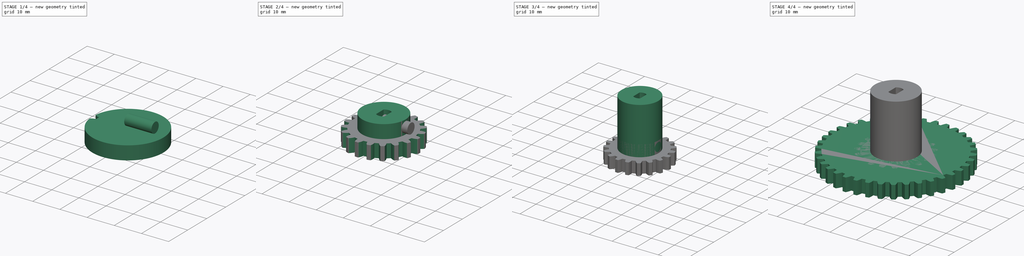
[diagram: build sequence overview — one tinted view per stage of 4, left to right]
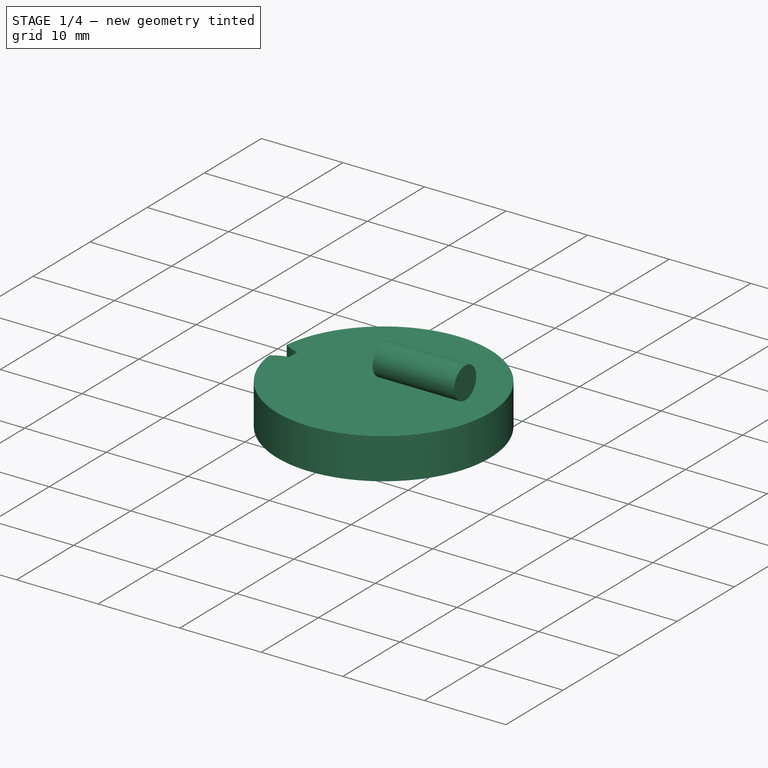
[diagram: stage 1 of 4 — iso view after this stage's code; geometry added in this stage tinted green]
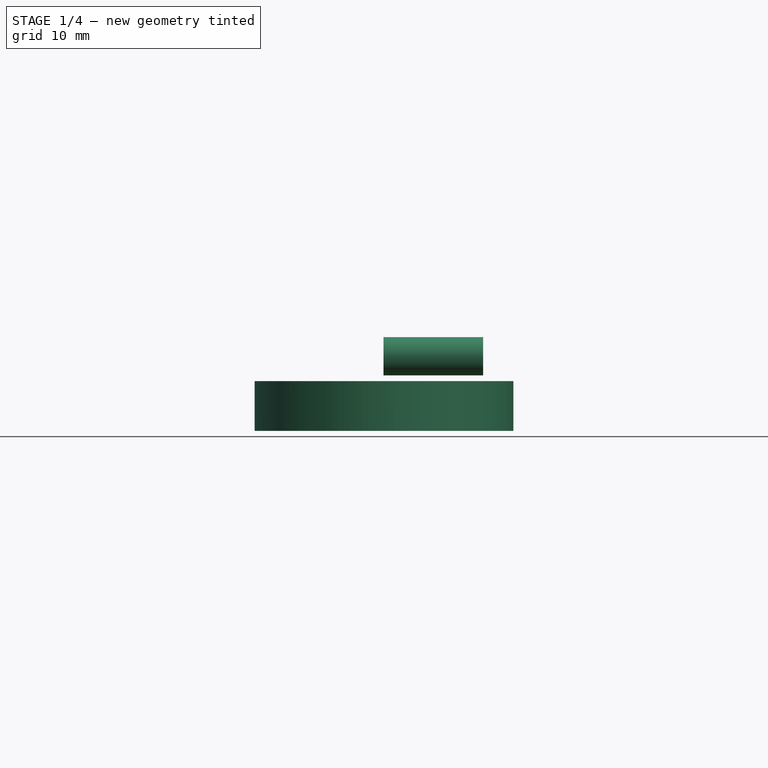
[diagram: stage 1 of 4 — front view after this stage's code; geometry added in this stage tinted green]
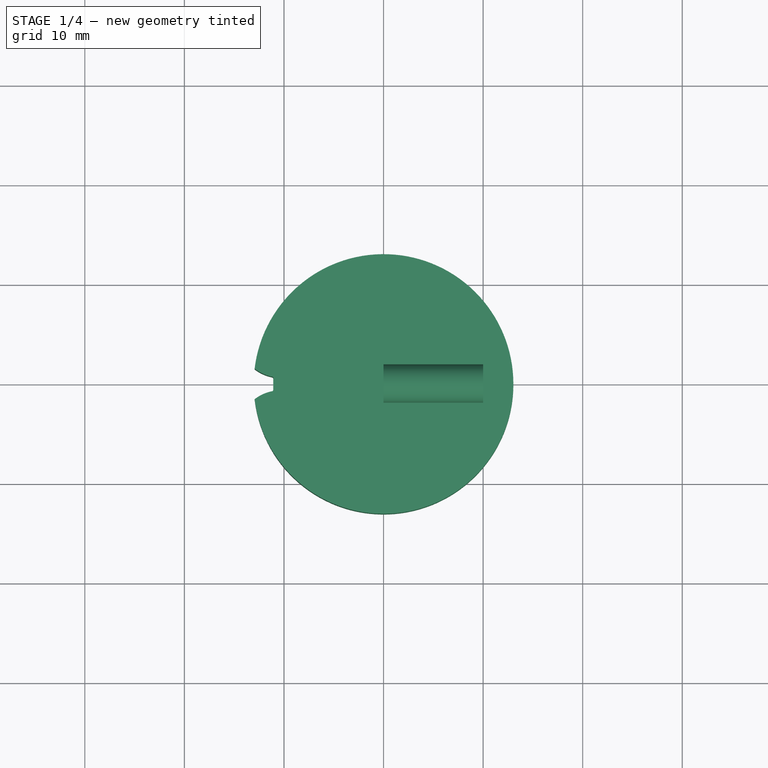
[diagram: stage 1 of 4 — top view after this stage's code; geometry added in this stage tinted green]
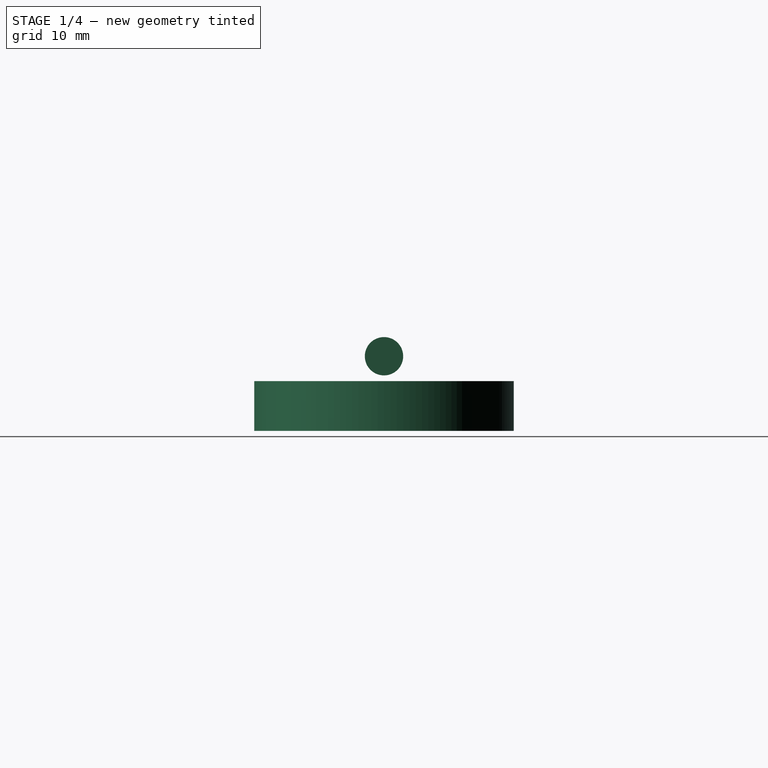
[diagram: stage 1 of 4 — right view after this stage's code; geometry added in this stage tinted green]
FCSTD DOCUMENT  (FreeCAD 0.15R4671 (Git))
Label: inner_gear19
License: All rights reserved
LicenseURL: http://en.wikipedia.org/wiki/All_rights_reserved
objects: Sketcher::SketchObject×9, PartDesign::Pad×5, PartDesign::Pocket×4, PartDesign::PolarPattern×2, Part::Cut×1
note: 30 computed .brp shape members not serialized (recipe doc carries the construction recipe); baked Part::Feature solids carry a one-line shape summary decoded from their .brp

FEATURE [Sketcher::SketchObject] Sketch005
  sketch-geometry (1):
    g0: Circle CenterX=0 CenterY=0 CenterZ=0 NormalX=0 NormalY=0 NormalZ=1 Radius=13.0379
  constraints (2):
    c: Coincident(g0,g-1)
    c: Radius(g0) = 13.0379
FEATURE [PartDesign::Pad] Pad002
  Length = 5
  Length2 = 100
  Sketch = -> Sketch005
  Type = 0
FEATURE [Sketcher::SketchObject] Sketch004
  Placement = pos=(0,0,5) rot=(0,0,1;0rad)
  Support = -> Pad002 [Face3]
  sketch-geometry (6):
    g0: LineSegment StartX=-11.08 StartY=0.600814 StartZ=0 EndX=-11.08 EndY=-0.600814 EndZ=0
    g1: ArcOfCircle CenterX=-10.3644 CenterY=-4.85409 CenterZ=0 NormalX=0 NormalY=0 NormalZ=1 Radius=4.20854 StartAngle=1.76734 EndAngle=2.23646
    g2: ArcOfCircle CenterX=-11.2076 CenterY=-0.600814 CenterZ=0 NormalX=0 NormalY=0 NormalZ=1 Radius=0.127562 StartAngle=4.88076 EndAngle=6.28319
    g3: ArcOfCircle CenterX=-11.2076 CenterY=0.600814 CenterZ=0 NormalX=0 NormalY=0 NormalZ=1 Radius=0.127562 StartAngle=6.28319 EndAngle=7.68561
    g4: ArcOfCircle CenterX=-10.3644 CenterY=4.85409 CenterZ=0 NormalX=0 NormalY=0 NormalZ=1 Radius=4.20854 StartAngle=4.04673 EndAngle=4.51585
    g5: ArcOfCircle CenterX=-14.1759 CenterY=0 CenterZ=0 NormalX=0 NormalY=0 NormalZ=1 Radius=1.96315 StartAngle=0.905139 EndAngle=5.37805
  constraints (20):
    c: Coincident(g3,g0)
    c: Coincident(g4,g3)
    c: Coincident(g0,g2)
    c: Coincident(g2,g1)
    c: Tangent(g2,g0)
    c: Symmetric(g0,g0,g-1)
    c: DistanceX(g0) = -11.08
    c: DistanceY(g0) = -0.600814
    c: DistanceX(g1) = -11.1862
    c: DistanceY(g1) = -0.726572
    c: DistanceX(g1) = -12.9635
    c: DistanceY(g1) = -1.54404
    c: Radius(g1) = 4.20854
    c: Equal(g1,g4)
    c: Symmetric(g4,g1,g-1)
    c: Symmetric(g3,g1,g-1)
    c: Tangent(g3,g0)
    c: Coincident(g5,g4)
    c: Coincident(g5,g1)
    c: Tangent(g5,g4)
FEATURE [PartDesign::Pocket] Pocket002
  Length = 5
  Sketch = -> Sketch004
  Type = 1
FEATURE [Sketcher::SketchObject] Sketch009
  Placement = pos=(0,0,0) rot=(0.57735,0.57735,0.57735;2.0944rad)
  sketch-geometry (1):
    g0: Circle CenterX=0 CenterY=7.5 CenterZ=0 NormalX=0 NormalY=0 NormalZ=1 Radius=1.925
  constraints (3):
    c: PointOnObject(g0,g-2)
    c: Radius(g0) = 1.925
    c: DistanceY(g0) = 7.5
FEATURE [PartDesign::Pad] Pad004
  Length = 10
  Length2 = 100
  Placement = pos=(0,0,0) rot=(0.57735,0.57735,0.57735;2.0944rad)
  Sketch = -> Sketch009
  Type = 0
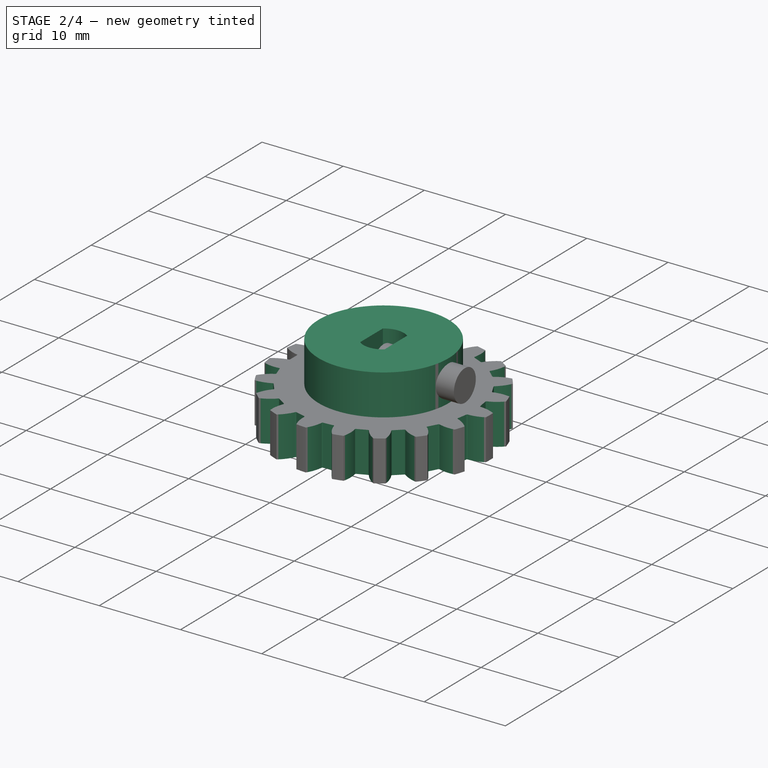
[diagram: stage 2 of 4 — iso view after this stage's code; geometry added in this stage tinted green]
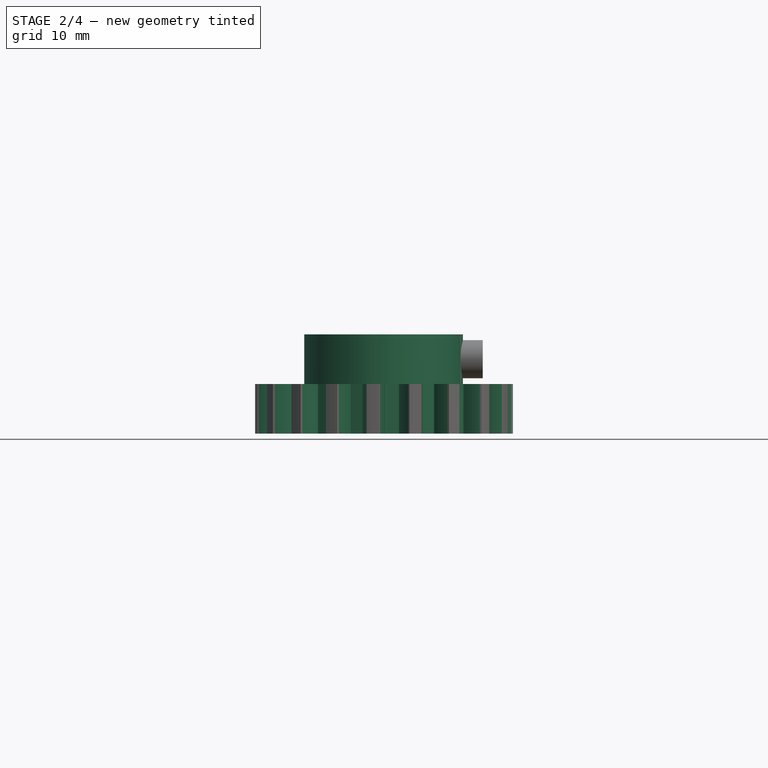
[diagram: stage 2 of 4 — front view after this stage's code; geometry added in this stage tinted green]
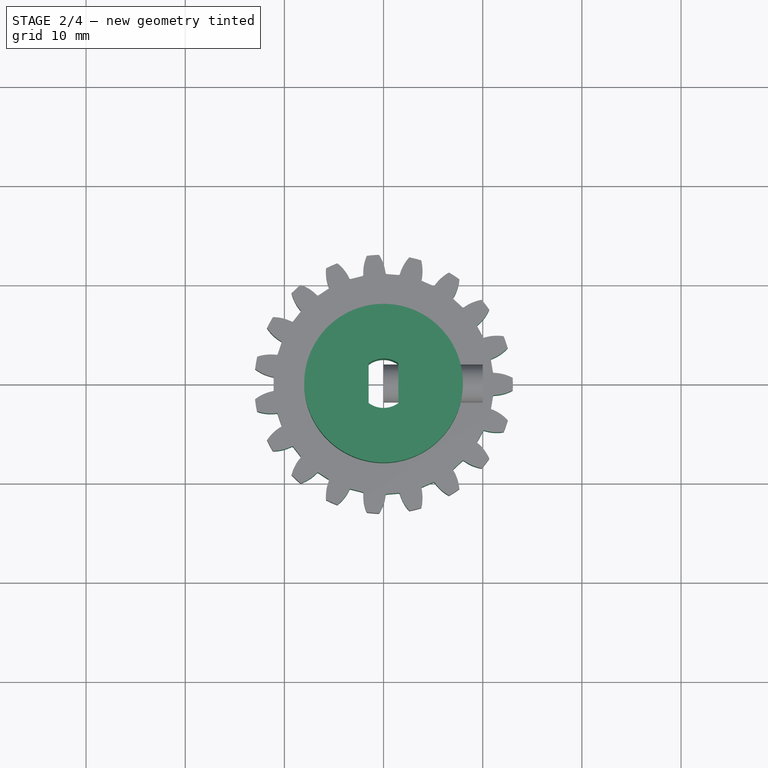
[diagram: stage 2 of 4 — top view after this stage's code; geometry added in this stage tinted green]
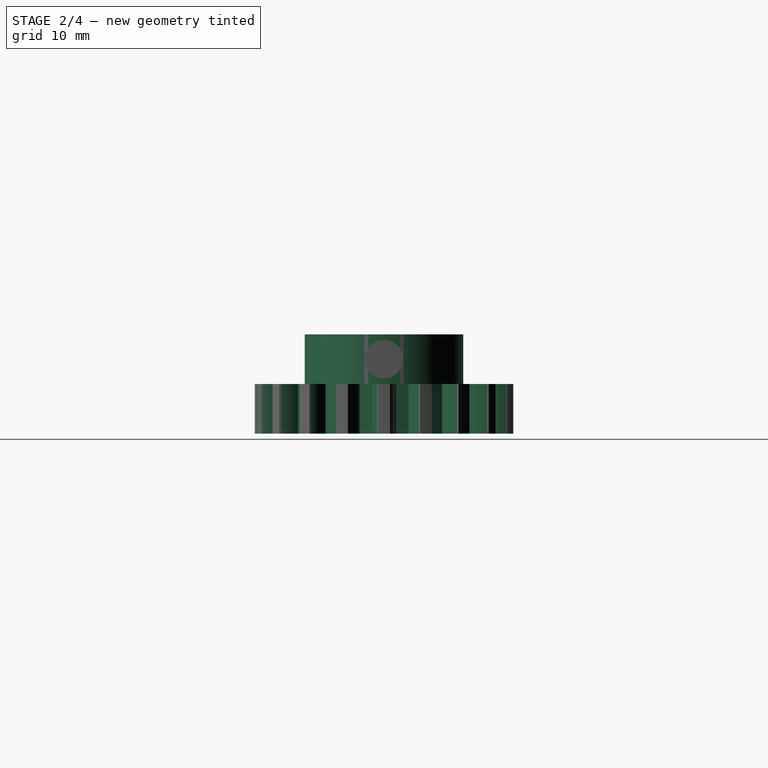
[diagram: stage 2 of 4 — right view after this stage's code; geometry added in this stage tinted green]
FEATURE [PartDesign::PolarPattern] PolarPattern001
  Angle = 360
  Axis = -> Sketch004 [N_Axis]
  Occurrences = 19
  Originals = -> [Pocket002]
FEATURE [Sketcher::SketchObject] Sketch006
  Placement = pos=(0,0,5) rot=(0,0,1;0rad)
  Support = -> PolarPattern001 [Face4]
  sketch-geometry (1):
    g0: Circle CenterX=0 CenterY=0 CenterZ=0 NormalX=0 NormalY=0 NormalZ=1 Radius=8
  constraints (2):
    c: Coincident(g0,g-1)
    c: Radius(g0) = 8
FEATURE [PartDesign::Pad] Pad003
  Length = 5
  Length2 = 100
  Sketch = -> Sketch006
  Type = 0
FEATURE [Sketcher::SketchObject] Sketch007
  Placement = pos=(0,0,10) rot=(0,0,1;0rad)
  Support = -> Pad003 [Face1]
  sketch-geometry (4):
    g0: LineSegment StartX=-1.5 StartY=2 StartZ=0 EndX=-1.5 EndY=-2 EndZ=0
    g1: LineSegment StartX=1.5 StartY=2 StartZ=0 EndX=1.5 EndY=-2 EndZ=0
    g2: ArcOfCircle CenterX=0 CenterY=0 CenterZ=0 NormalX=0 NormalY=0 NormalZ=1 Radius=2.5 StartAngle=0.927295 EndAngle=2.2143
    g3: ArcOfCircle CenterX=0 CenterY=0 CenterZ=0 NormalX=0 NormalY=0 NormalZ=1 Radius=2.5 StartAngle=4.06889 EndAngle=5.35589
  constraints (11):
    c: Symmetric(g0,g1,g-2)
    c: DistanceX(g0) = -1.5
    c: Symmetric(g0,g0,g-1)
    c: Symmetric(g0,g1,g-2)
    c: DistanceY(g0) = 2
    c: Coincident(g2,g0)
    c: Coincident(g2,g1)
    c: Coincident(g2,g-1)
    c: Coincident(g3,g0)
    c: Coincident(g3,g1)
    c: Coincident(g3,g-1)
FEATURE [PartDesign::Pocket] Pocket003
  Length = 5
  Sketch = -> Sketch007
  Type = 1
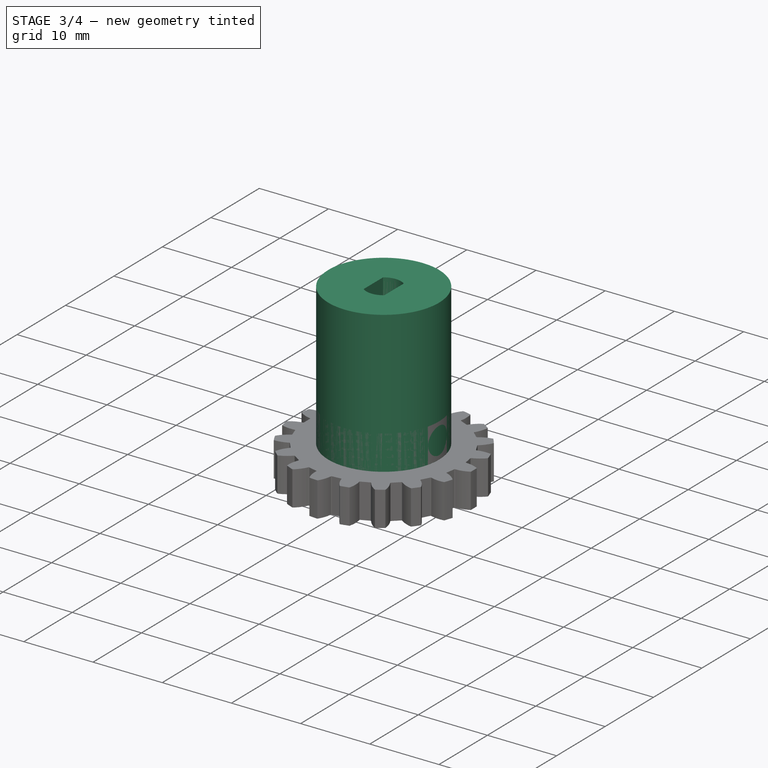
[diagram: stage 3 of 4 — iso view after this stage's code; geometry added in this stage tinted green]
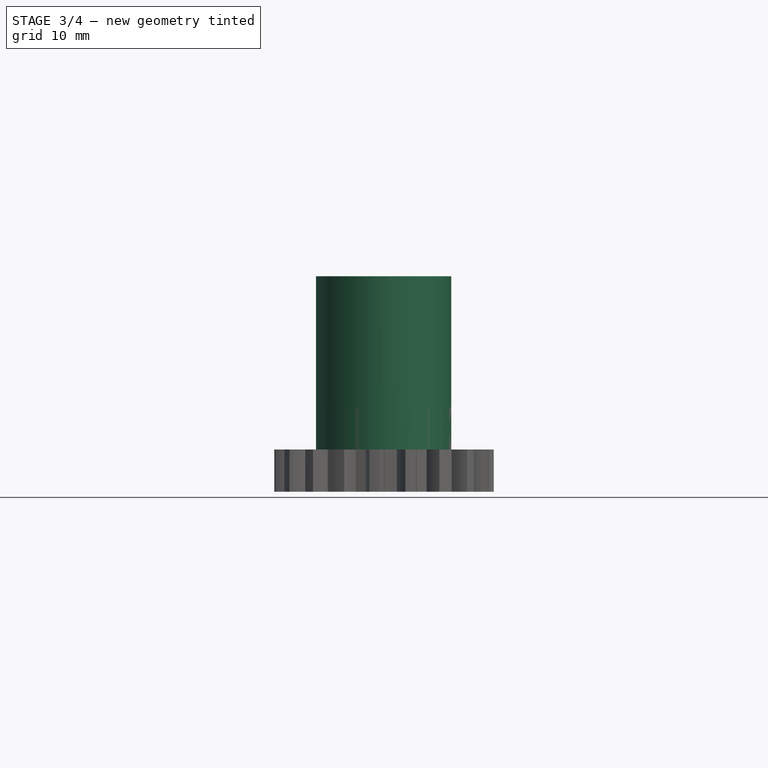
[diagram: stage 3 of 4 — front view after this stage's code; geometry added in this stage tinted green]
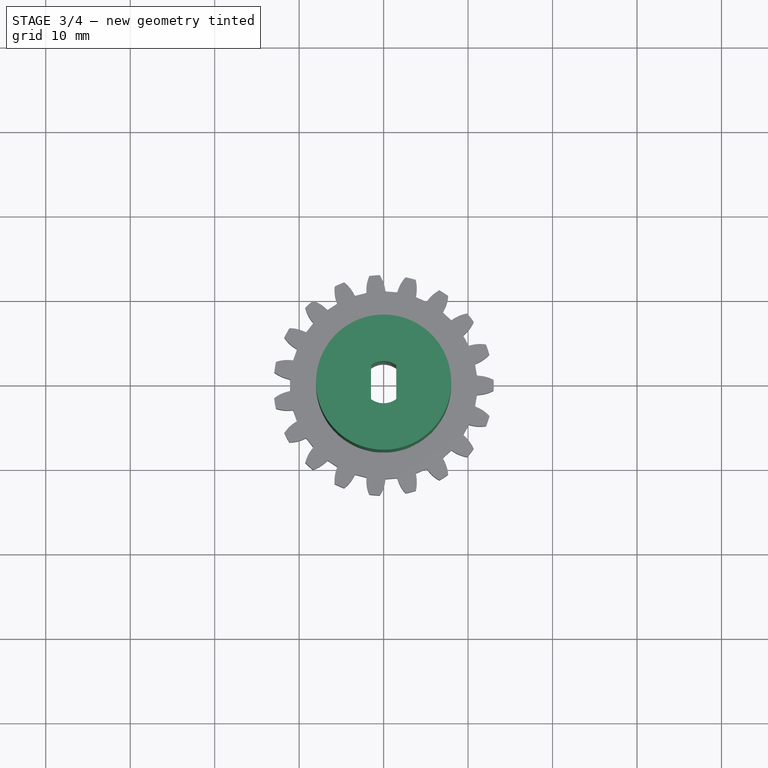
[diagram: stage 3 of 4 — top view after this stage's code; geometry added in this stage tinted green]
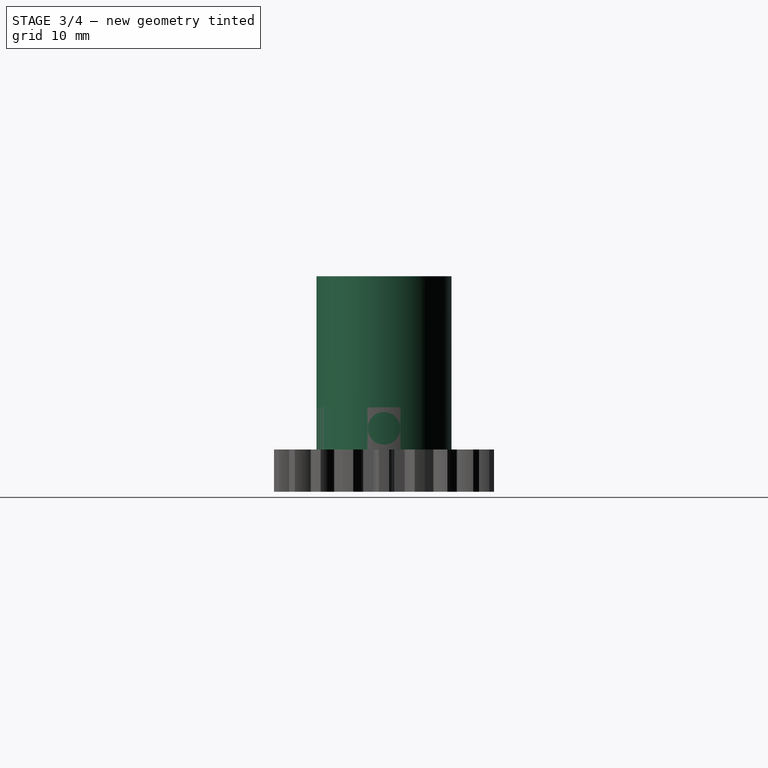
[diagram: stage 3 of 4 — right view after this stage's code; geometry added in this stage tinted green]
FEATURE [Sketcher::SketchObject] Sketch002
  Placement = pos=(0,0,5) rot=(0,0,1;0rad)
  Support = -> PolarPattern001 [Face4]
  sketch-geometry (1):
    g0: Circle CenterX=0 CenterY=0 CenterZ=0 NormalX=0 NormalY=0 NormalZ=1 Radius=8
  constraints (2):
    c: Coincident(g0,g-1)
    c: Radius(g0) = 8
FEATURE [PartDesign::Pad] Pad001
  Length = 20.5
  Length2 = 100
  Sketch = -> Sketch002
  Type = 0
FEATURE [Sketcher::SketchObject] Sketch003
  Placement = pos=(0,0,25.5) rot=(0,0,1;0rad)
  Support = -> Pad001 [Face1]
  sketch-geometry (4):
    g0: LineSegment StartX=-1.5 StartY=2 StartZ=0 EndX=-1.5 EndY=-2 EndZ=0
    g1: LineSegment StartX=1.5 StartY=2 StartZ=0 EndX=1.5 EndY=-2 EndZ=0
    g2: ArcOfCircle CenterX=0 CenterY=0 CenterZ=0 NormalX=0 NormalY=0 NormalZ=1 Radius=2.5 StartAngle=0.927295 EndAngle=2.2143
    g3: ArcOfCircle CenterX=0 CenterY=0 CenterZ=0 NormalX=0 NormalY=0 NormalZ=1 Radius=2.5 StartAngle=4.06889 EndAngle=5.35589
  constraints (11):
    c: Symmetric(g0,g1,g-2)
    c: DistanceX(g0) = -1.5
    c: Symmetric(g0,g0,g-1)
    c: Symmetric(g0,g1,g-2)
    c: DistanceY(g0) = 2
    c: Coincident(g2,g0)
    c: Coincident(g2,g1)
    c: Coincident(g2,g-1)
    c: Coincident(g3,g0)
    c: Coincident(g3,g1)
    c: Coincident(g3,g-1)
FEATURE [PartDesign::Pocket] Pocket001
  Length = 5
  Sketch = -> Sketch003
  Type = 1
FEATURE [Part::Cut] Cut
  Base = -> Pocket003
  Tool = -> Pad004
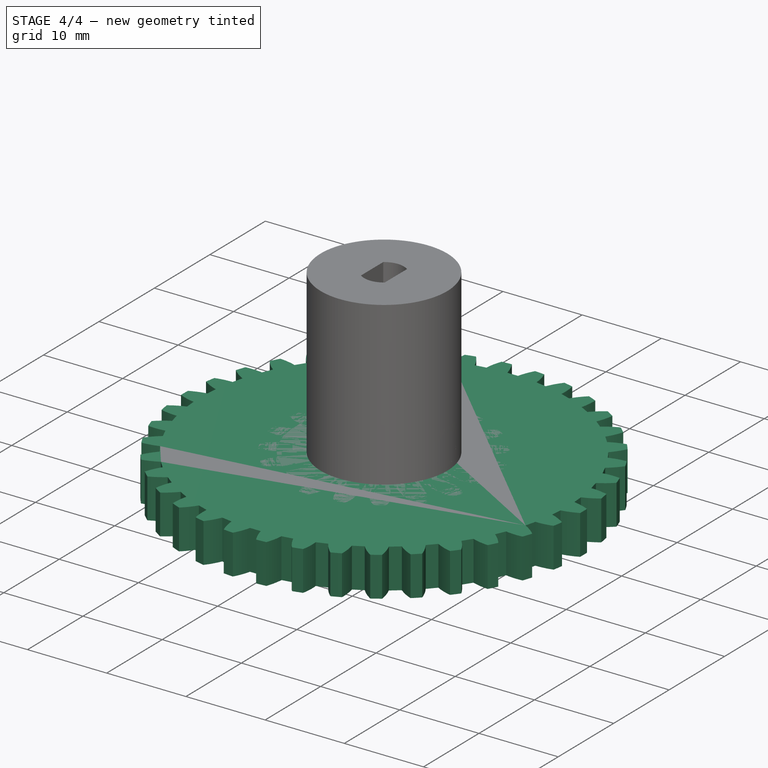
[diagram: stage 4 of 4 — iso view after this stage's code; geometry added in this stage tinted green]
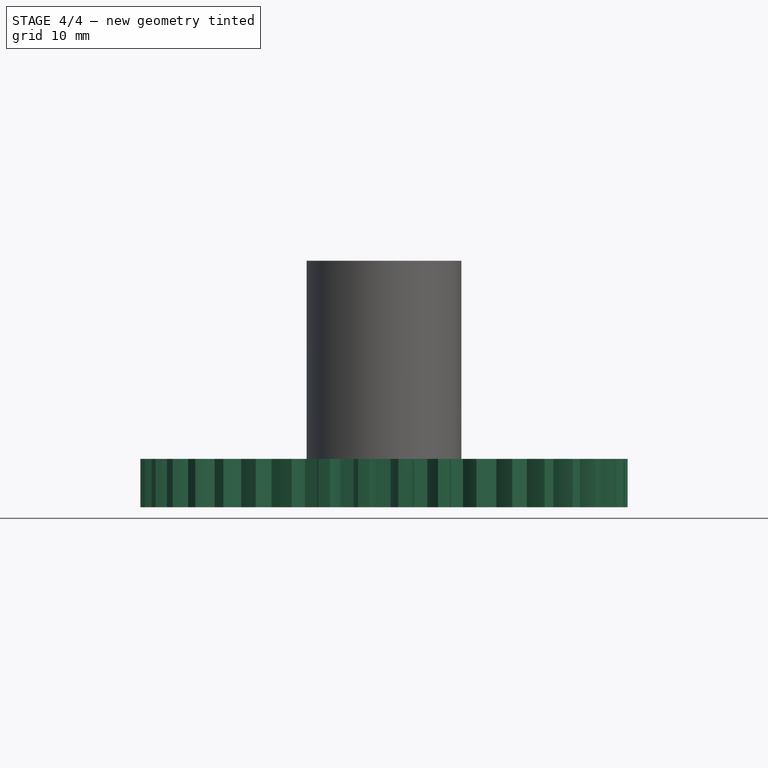
[diagram: stage 4 of 4 — front view after this stage's code; geometry added in this stage tinted green]
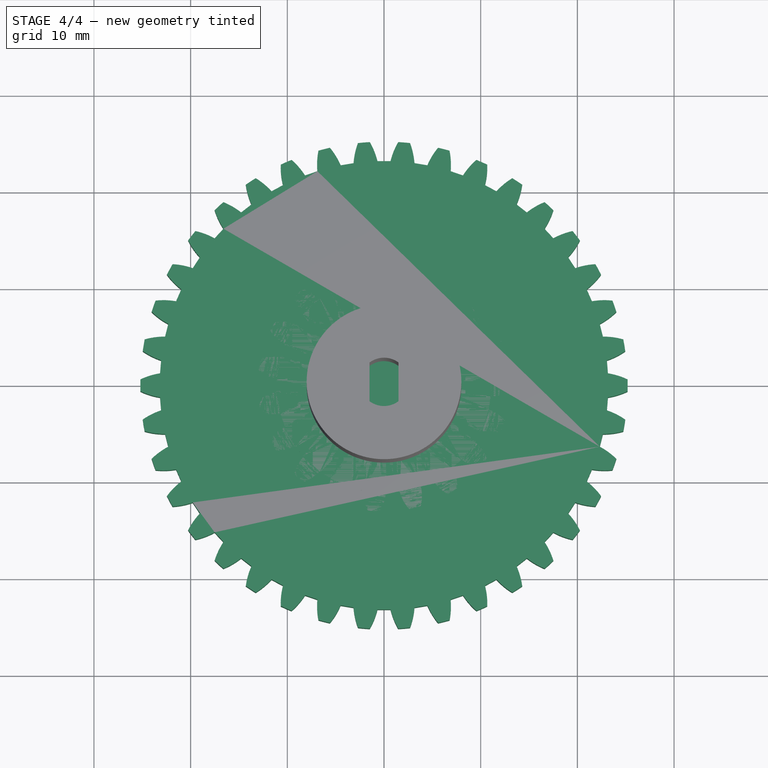
[diagram: stage 4 of 4 — top view after this stage's code; geometry added in this stage tinted green]
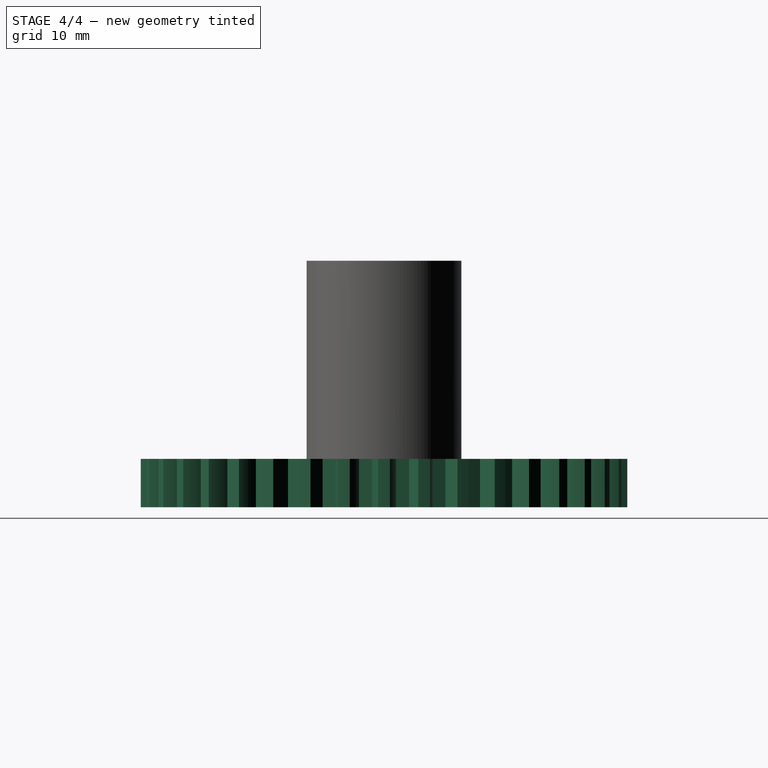
[diagram: stage 4 of 4 — right view after this stage's code; geometry added in this stage tinted green]
FEATURE [Sketcher::SketchObject] Sketch
  sketch-geometry (1):
    g0: Circle CenterX=0 CenterY=0 CenterZ=0 NormalX=0 NormalY=0 NormalZ=1 Radius=25.2012
  constraints (2):
    c: Radius(g0) = 25.2012
    c: Coincident(g0,g-1)
FEATURE [PartDesign::Pad] Pad
  Length = 5
  Length2 = 100
  Sketch = -> Sketch
  Type = 0
FEATURE [Sketcher::SketchObject] Sketch001
  Placement = pos=(0,0,5) rot=(0,0,1;0rad)
  Support = -> Pad [Face3]
  sketch-geometry (7):
    g0: LineSegment [constr] StartX=0 StartY=0 StartZ=0 EndX=0 EndY=23.186 EndZ=0
    g1: ArcOfCircle CenterX=-7.92249 CenterY=21.4089 CenterZ=0 NormalX=0 NormalY=0 NormalZ=1 Radius=7.46365 StartAngle=0.240414 EndAngle=0.527906
    g2: LineSegment StartX=-0.673495 StartY=23.186 StartZ=0 EndX=0.673495 EndY=23.186 EndZ=0
    g3: ArcOfCircle CenterX=7.92249 CenterY=21.4089 CenterZ=0 NormalX=0 NormalY=0 NormalZ=1 Radius=7.46365 StartAngle=2.61369 EndAngle=2.90118
    g4: ArcOfCircle CenterX=0 CenterY=25.2776 CenterZ=0 NormalX=0 NormalY=0 NormalZ=1 Radius=1.47894 StartAngle=6.20935 EndAngle=9.49862
    g5: LineSegment [constr] StartX=-1.47491 StartY=25.1685 StartZ=0 EndX=1.47491 EndY=25.1685 EndZ=0
    g6: LineSegment [constr] StartX=0 StartY=23.186 StartZ=0 EndX=0 EndY=25.1685 EndZ=0
  constraints (21):
    c: Coincident(g2,g1)
    c: Symmetric(g1,g2,g0)
    c: Coincident(g3,g2)
    c: Symmetric(g1,g3,g0)
    c: Symmetric(g1,g3,g0)
    c: Distance(g2) = 1.34699
    c: Coincident(g4,g1)
    c: Coincident(g4,g3)
    c: Radius(g4) = 1.47894
    c: Radius(g1) = 7.46365
    c: PointOnObject(g0,g2)
    c: Distance(g0) = 23.186
    c: Coincident(g5,g1)
    c: Coincident(g5,g3)
    c: Distance(g5) = 2.94982
    c: Coincident(g6,g0)
    c: PointOnObject(g6,g5)
    c: Perpendicular(g5,g6)
    c: Distance(g6) = 1.9825
    c: Vertical(g0)
    c: Coincident(g0,g-1)
FEATURE [PartDesign::Pocket] Pocket
  Length = 5
  Sketch = -> Sketch001
  Type = 1
FEATURE [PartDesign::PolarPattern] PolarPattern
  Angle = 360
  Axis = -> Sketch001 [N_Axis]
  Occurrences = 38
  Originals = -> [Pocket]
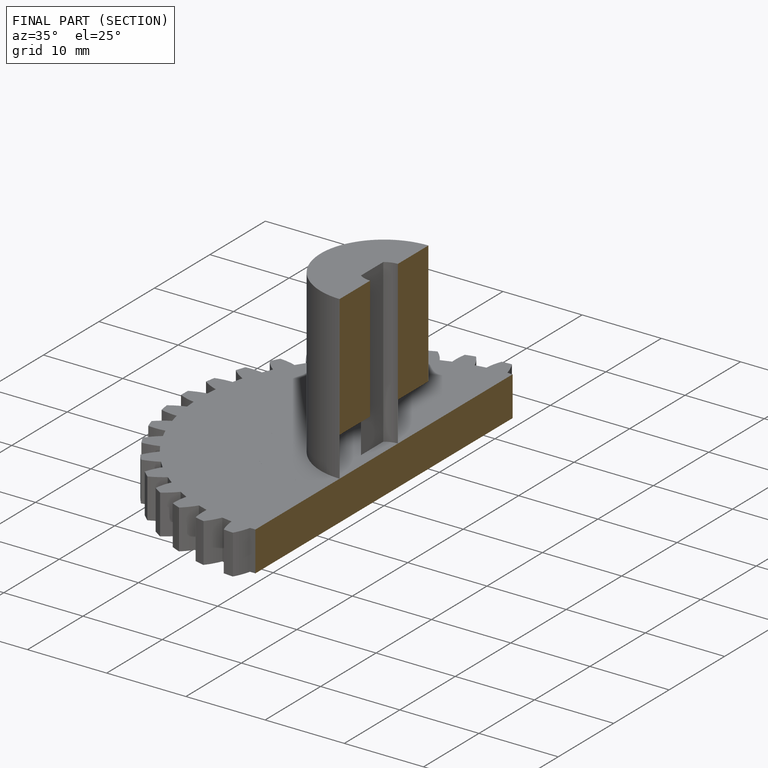
[diagram: finished part — half-section view (interior)]
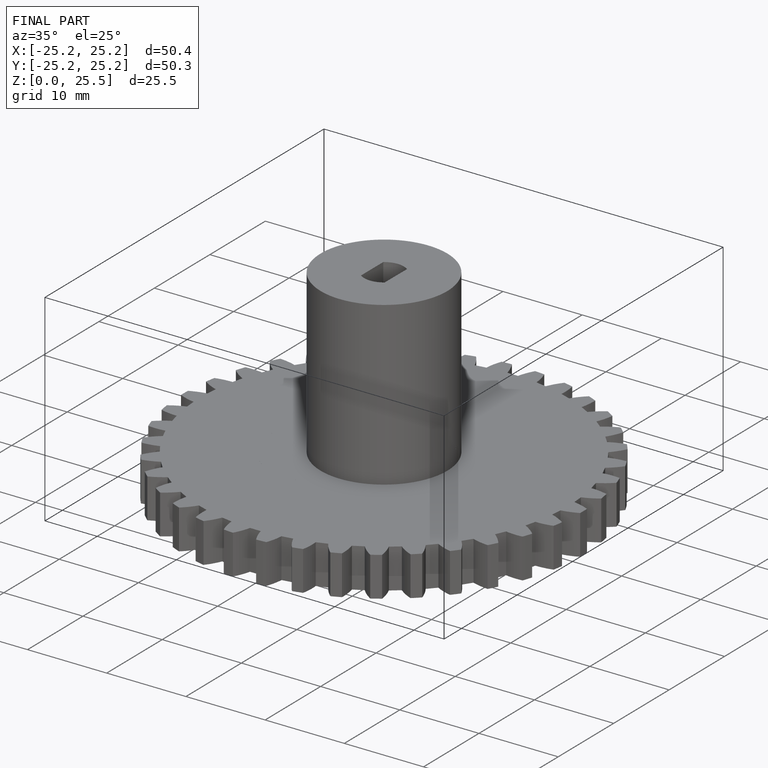
[diagram: finished part — iso view with bounding-box wireframe]
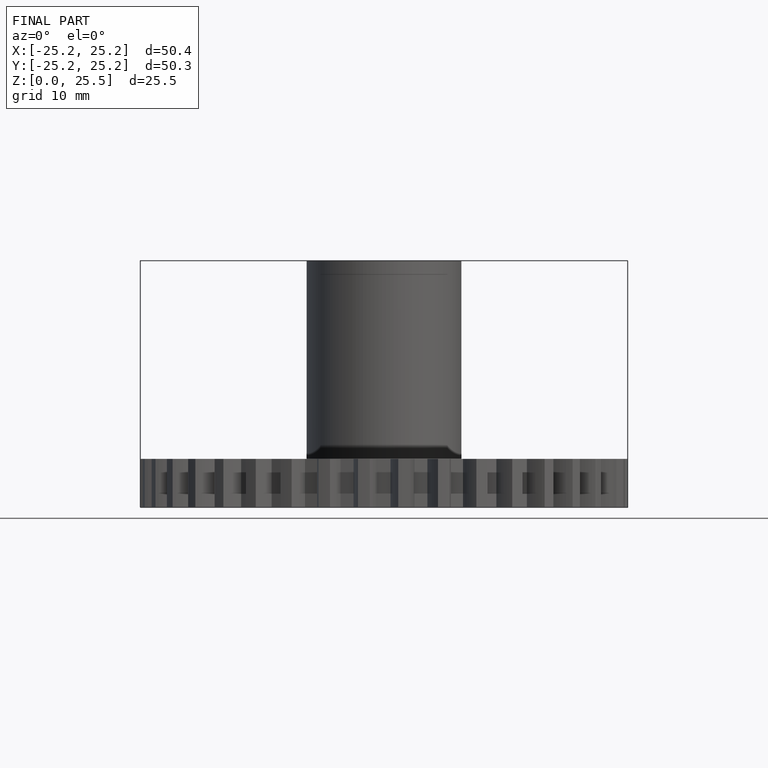
[diagram: finished part — front view with bounding-box wireframe]
